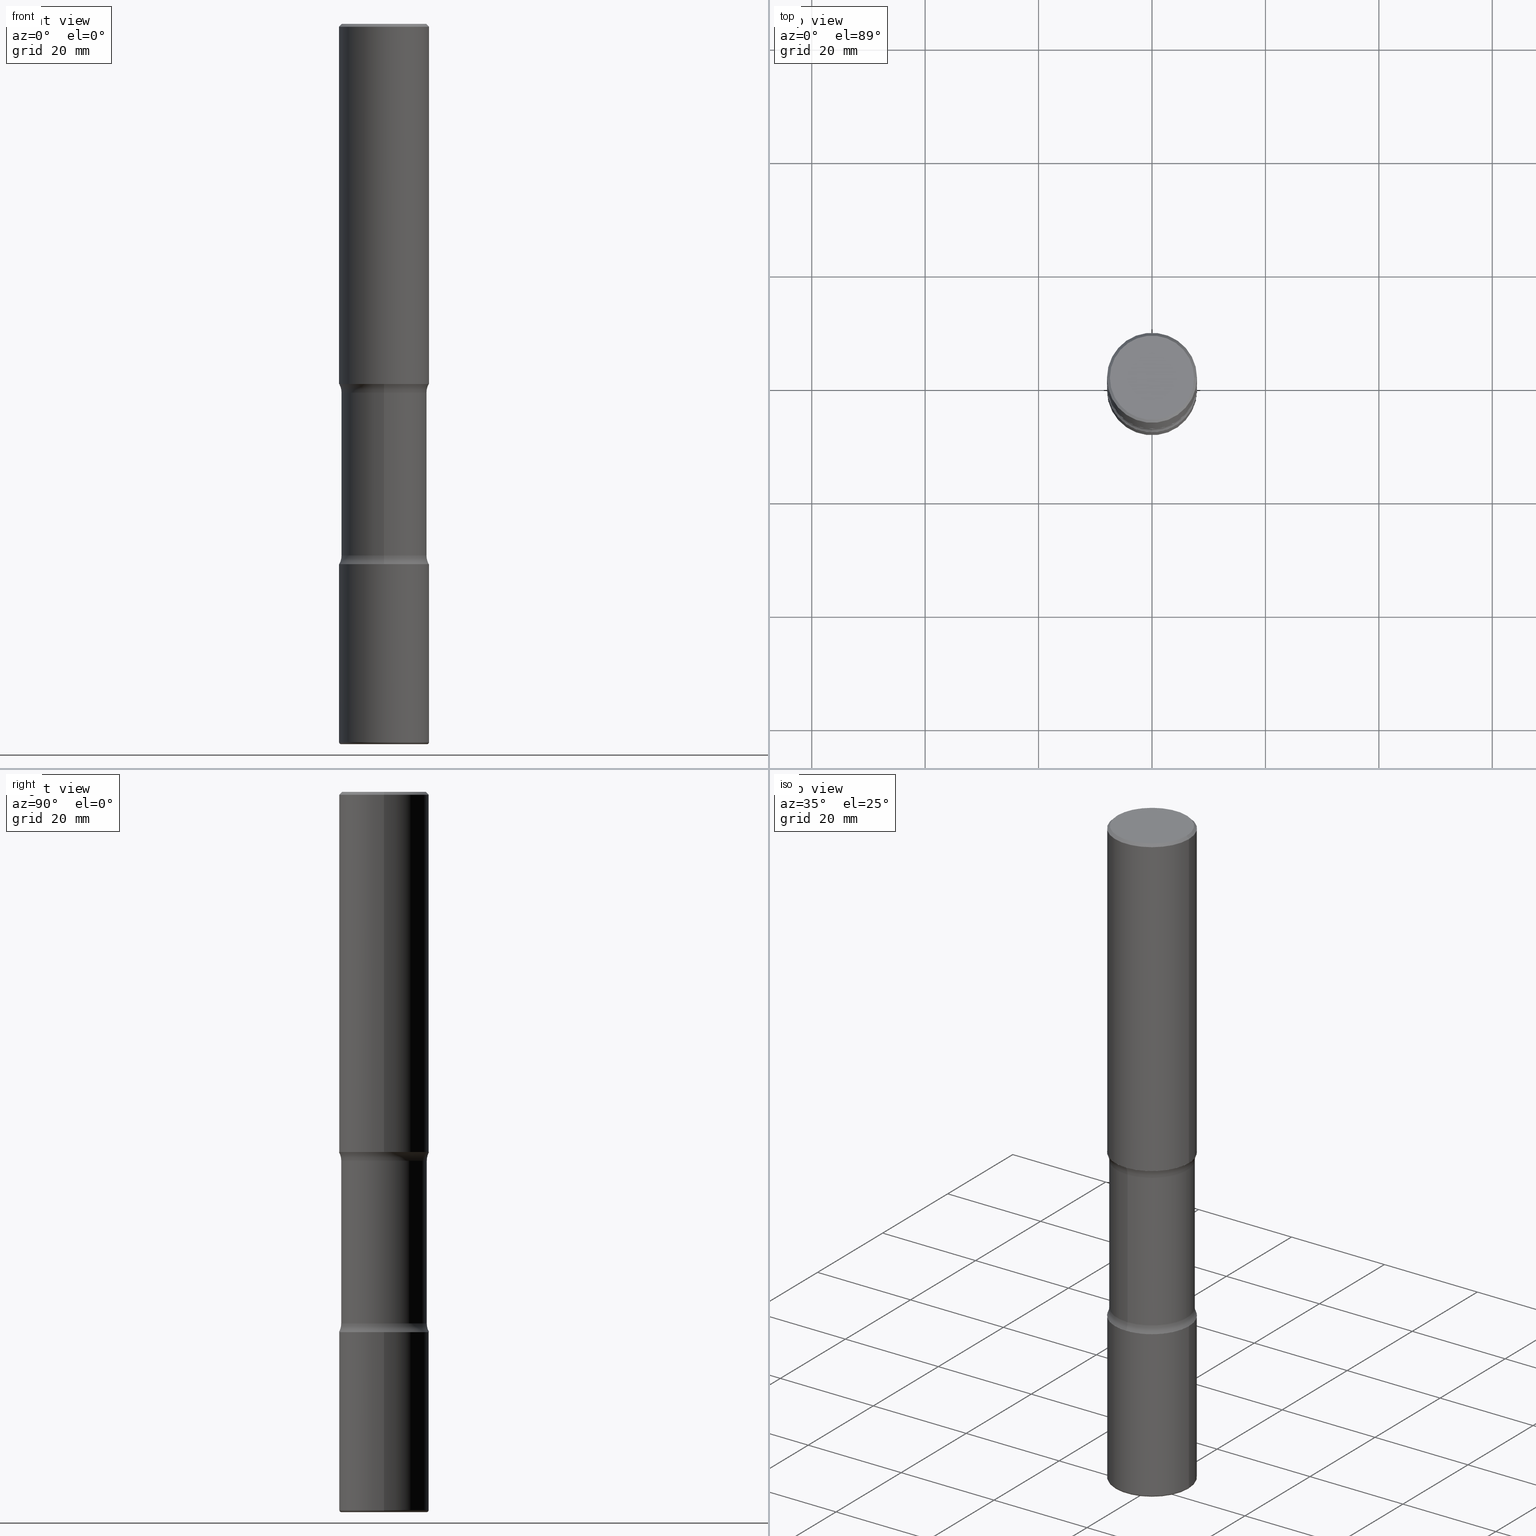
[diagram: canonical four-view strip — front | top / right | iso, engineering-drawing reading convention]
A machine part, canonical four-view strip (front | top / right | iso — engineering-drawing reading convention). The complete STEP part file that produces these views, byte-faithful:
ISO-10303-21;
HEADER;
FILE_DESCRIPTION (( 'STEP AP203' ),
    '1' );
FILE_NAME ('37900.STEP',
    '2024-03-02T01:12:08',
    ( '' ),
    ( '' ),
    'SwSTEP 2.0',
    'SolidWorks 2023',
    '' );
FILE_SCHEMA (( 'CONFIG_CONTROL_DESIGN' ));
ENDSEC;

DATA;
#1 = CARTESIAN_POINT ( 'NONE',  ( -0.3124999999999998890, 2.112346210000094260E-15, -0.02000000000000006981 ) ) ;
#2 = CC_DESIGN_PERSON_AND_ORGANIZATION_ASSIGNMENT ( #401, #183, ( #283 ) ) ;
#3 = DIRECTION ( 'NONE',  ( 2.521457479434076939E-29, -3.382661233743975076E-15, -1.000000000000000000 ) ) ;
#4 = CARTESIAN_POINT ( 'NONE',  ( 4.890937612370289799E-31, -6.982962677686315028E-17, -0.02000000000000006981 ) ) ;
#5 = CIRCLE ( 'NONE', #510, 0.3125000000000001665 ) ;
#6 = CC_DESIGN_PERSON_AND_ORGANIZATION_ASSIGNMENT ( #365, #242, ( #489 ) ) ;
#7 = TOROIDAL_SURFACE ( 'NONE', #250, 0.4218750000000001110, 0.1250000000000001388 ) ;
#8 = CIRCLE ( 'NONE', #205, 0.2968750000000000000 ) ;
#9 = DIMENSIONAL_EXPONENTS ( 1.000000000000000000, 0.000000000000000000, 0.000000000000000000, 0.000000000000000000, 0.000000000000000000, 0.000000000000000000, 0.000000000000000000 ) ;
#10 = PERSON ( 'UNSPECIFIED', 'UNSPECIFIED', 'UNSPECIFIED', ('UNSPECIFIED'), ('UNSPECIFIED'), ('UNSPECIFIED') ) ;
#11 = EDGE_CURVE ( 'NONE', #87, #347, #546, .T. ) ;
#12 = DIRECTION ( 'NONE',  ( -1.000000000000000000, 6.982962677686265922E-15, -4.876176775795935793E-29 ) ) ;
#13 = DATE_TIME_ROLE ( 'creation_date' ) ;
#14 = CARTESIAN_POINT ( 'NONE',  ( 9.170508023194261117E-29, -1.309305502066179584E-14, -3.749999999999999556 ) ) ;
#15 = DIRECTION ( 'NONE',  ( -2.445468806185136597E-29, 3.491481338843145583E-15, 1.000000000000000000 ) ) ;
#16 = AXIS2_PLACEMENT_3D ( 'NONE', #179, #46, #131 ) ;
#17 = SECURITY_CLASSIFICATION_LEVEL ( 'unclassified' ) ;
#18 = ORIENTED_EDGE ( 'NONE', *, *, #31, .T. ) ;
#19 = DIRECTION ( 'NONE',  ( 1.000000000000000000, -6.982962677686265133E-15, 0.000000000000000000 ) ) ;
#20 = CARTESIAN_POINT ( 'NONE',  ( 9.170508023194261117E-29, -1.309305502066179584E-14, -3.749999999999999556 ) ) ;
#21 = DIRECTION ( 'NONE',  ( 1.000000000000000000, -6.982962677686266711E-15, 4.876176775795935232E-29 ) ) ;
#22 = ORIENTED_EDGE ( 'NONE', *, *, #152, .T. ) ;
#23 = CC_DESIGN_PERSON_AND_ORGANIZATION_ASSIGNMENT ( #95, #495, ( #413 ) ) ;
#24 = VERTEX_POINT ( 'NONE', #456 ) ;
#25 = PLANE ( 'NONE',  #333 ) ;
#26 = VERTEX_POINT ( 'NONE', #105 ) ;
#27 = AXIS2_PLACEMENT_3D ( 'NONE', #352, #41, #399 ) ;
#28 = ORIENTED_EDGE ( 'NONE', *, *, #50, .T. ) ;
#29 = DIRECTION ( 'NONE',  ( 6.860497997771529985E-15, 1.000000000000000000, 0.000000000000000000 ) ) ;
#30 = PLANE ( 'NONE',  #376 ) ;
#31 = EDGE_CURVE ( 'NONE', #411, #347, #69, .T. ) ;
#32 = FACE_OUTER_BOUND ( 'NONE', #377, .T. ) ;
#33 = DIRECTION ( 'NONE',  ( 6.982962677686265922E-15, 1.000000000000000000, -3.382661233743975076E-15 ) ) ;
#34 = DIRECTION ( 'NONE',  ( 2.521457479434076939E-29, -3.382661233743975076E-15, -1.000000000000000000 ) ) ;
#35 = ORIENTED_EDGE ( 'NONE', *, *, #201, .F. ) ;
#36 = VECTOR ( 'NONE', #485, 39.37007874015748143 ) ;
#37 = ORIENTED_EDGE ( 'NONE', *, *, #268, .F. ) ;
#38 = DIRECTION ( 'NONE',  ( 6.982962677686266711E-15, 1.000000000000000000, -3.680805717779217644E-15 ) ) ;
#39 = DIRECTION ( 'NONE',  ( -2.445468806185136597E-29, 3.491481338843145583E-15, 1.000000000000000000 ) ) ;
#40 = CARTESIAN_POINT ( 'NONE',  ( 1.219066199883290567E-28, -1.740503447413308005E-14, -4.984999999999999432 ) ) ;
#41 = DIRECTION ( 'NONE',  ( -2.445468806185136597E-29, 3.491481338843145583E-15, 1.000000000000000000 ) ) ;
#42 = PLANE ( 'NONE',  #440 ) ;
#43 = VECTOR ( 'NONE', #225, 39.37007874015748143 ) ;
#44 = CIRCLE ( 'NONE', #85, 0.1250000000000000000 ) ;
#45 = ADVANCED_FACE ( 'NONE', ( #90 ), #241, .F. ) ;
#46 = DIRECTION ( 'NONE',  ( 0.000000000000000000, 0.000000000000000000, 1.000000000000000000 ) ) ;
#47 = AXIS2_PLACEMENT_3D ( 'NONE', #455, #371, #337 ) ;
#48 = CARTESIAN_POINT ( 'NONE',  ( -0.2924999999999998157, 2.077431396611663005E-15, 4.268512490086005323E-18 ) ) ;
#49 = APPROVAL_PERSON_ORGANIZATION ( #526, #416, #491 ) ;
#50 = EDGE_CURVE ( 'NONE', #474, #547, #187, .T. ) ;
#51 = CC_DESIGN_PERSON_AND_ORGANIZATION_ASSIGNMENT ( #186, #459, ( #413 ) ) ;
#52 = ORIENTED_EDGE ( 'NONE', *, *, #83, .F. ) ;
#53 = APPROVAL_ROLE ( '' ) ;
#54 = CARTESIAN_POINT ( 'NONE',  ( -0.3125000000000001665, -1.302859869814712249E-14, -3.749999999999999556 ) ) ;
#55 = ORIENTED_EDGE ( 'NONE', *, *, #520, .T. ) ;
#56 = DATE_AND_TIME ( #274, #378 ) ;
#57 = FACE_OUTER_BOUND ( 'NONE', #380, .T. ) ;
#58 = APPROVAL_PERSON_ORGANIZATION ( #133, #490, #408 ) ;
#59 = VERTEX_POINT ( 'NONE', #276 ) ;
#60 = DIRECTION ( 'NONE',  ( -1.000000000000000000, 7.105427357601066545E-15, 0.000000000000000000 ) ) ;
#61 = CARTESIAN_POINT ( 'NONE',  ( 0.3125000000000001665, -2.182175836776959530E-15, 1.523805242436230636E-29 ) ) ;
#62 = ORIENTED_EDGE ( 'NONE', *, *, #306, .F. ) ;
#63 = ORIENTED_EDGE ( 'NONE', *, *, #178, .F. ) ;
#64 = DIRECTION ( 'NONE',  ( 2.521457479434076939E-29, -3.382661233743975076E-15, -1.000000000000000000 ) ) ;
#65 = ORIENTED_EDGE ( 'NONE', *, *, #445, .F. ) ;
#66 = ORIENTED_EDGE ( 'NONE', *, *, #176, .F. ) ;
#67 = CARTESIAN_POINT ( 'NONE',  ( -2.894272592809775342E-15, -0.4218750000000130451, -3.689484635215506625 ) ) ;
#68 = CARTESIAN_POINT ( 'NONE',  ( 6.171273093058203090E-29, -9.069431456984199816E-15, -2.560515364784490711 ) ) ;
#69 = CIRCLE ( 'NONE', #217, 0.3125000000000001665 ) ;
#70 = AXIS2_PLACEMENT_3D ( 'NONE', #486, #385, #552 ) ;
#71 = EDGE_LOOP ( 'NONE', ( #428, #132 ) ) ;
#72 = ADVANCED_FACE ( 'NONE', ( #57 ), #137, .T. ) ;
#73 = ADVANCED_FACE ( 'NONE', ( #452 ), #402, .F. ) ;
#74 = CARTESIAN_POINT ( 'NONE',  ( 1.222734403092568523E-28, -1.745740669421572989E-14, -5.000000000000000000 ) ) ;
#75 = DIRECTION ( 'NONE',  ( 1.000000000000000000, -6.982962677686266711E-15, 4.876176775795936353E-29 ) ) ;
#76 = ORIENTED_EDGE ( 'NONE', *, *, #152, .F. ) ;
#77 = CARTESIAN_POINT ( 'NONE',  ( 4.890937612370289799E-31, -6.982962677686315028E-17, -0.02000000000000006981 ) ) ;
#78 = ORIENTED_EDGE ( 'NONE', *, *, #409, .F. ) ;
#79 = DIRECTION ( 'NONE',  ( 6.982962677686265133E-15, 1.000000000000000000, -3.496765431890254947E-15 ) ) ;
#80 = VECTOR ( 'NONE', #154, 39.37007874015748143 ) ;
#81 = CC_DESIGN_APPROVAL ( #416, ( #106 ) ) ;
#82 = CARTESIAN_POINT ( 'NONE',  ( 0.2924999999999998157, -2.110215457714318748E-15, 4.268512490114932791E-18 ) ) ;
#83 = EDGE_CURVE ( 'NONE', #547, #220, #305, .T. ) ;
#84 = AXIS2_PLACEMENT_3D ( 'NONE', #14, #98, #19 ) ;
#85 = AXIS2_PLACEMENT_3D ( 'NONE', #397, #215, #389 ) ;
#86 = EDGE_CURVE ( 'NONE', #509, #26, #354, .T. ) ;
#87 = VERTEX_POINT ( 'NONE', #513 ) ;
#88 = CIRCLE ( 'NONE', #84, 0.3125000000000001665 ) ;
#89 = CC_DESIGN_APPROVAL ( #97, ( #413 ) ) ;
#90 = FACE_OUTER_BOUND ( 'NONE', #368, .T. ) ;
#91 = DATE_AND_TIME ( #324, #356 ) ;
#92 = APPLICATION_CONTEXT ( 'configuration controlled 3d designs of mechanical parts and assemblies' ) ;
#93 = DIRECTION ( 'NONE',  ( -2.445468806185136597E-29, 3.491481338843145583E-15, 1.000000000000000000 ) ) ;
#94 = DIRECTION ( 'NONE',  ( 1.000000000000000000, -6.982962677686265133E-15, 0.000000000000000000 ) ) ;
#95 = PERSON_AND_ORGANIZATION ( #10, #308 ) ;
#96 = EDGE_LOOP ( 'NONE', ( #194, #421 ) ) ;
#97 = APPROVAL ( #328, 'UNSPECIFIED' ) ;
#98 = DIRECTION ( 'NONE',  ( -2.445468806185136597E-29, 3.491481338843145583E-15, 1.000000000000000000 ) ) ;
#100 = DIRECTION ( 'NONE',  ( 2.521457479434076939E-29, -3.382661233743975076E-15, -1.000000000000000000 ) ) ;
#99 = AXIS2_PLACEMENT_3D ( 'NONE', #387, #349, #553 ) ;
#101 = AXIS2_PLACEMENT_3D ( 'NONE', #262, #444, #112 ) ;
#102 = DIRECTION ( 'NONE',  ( 2.521457479434076939E-29, -3.382661233743975076E-15, -1.000000000000000000 ) ) ;
#103 = ORIENTED_EDGE ( 'NONE', *, *, #466, .T. ) ;
#104 = DIRECTION ( 'NONE',  ( 2.438088387897960049E-29, -3.491481338843145188E-15, -1.000000000000000000 ) ) ;
#105 = CARTESIAN_POINT ( 'NONE',  ( -2.090307983695922804E-15, -0.2968750000000128786, -3.689484635215507069 ) ) ;
#106 = PRODUCT_DEFINITION ( 'UNKNOWN', '', #413, #266 ) ;
#107 = DIRECTION ( 'NONE',  ( 1.000000000000000000, -6.982962677686264344E-15, 0.000000000000000000 ) ) ;
#108 = DIRECTION ( 'NONE',  ( -1.000000000000000000, 6.982962677686266711E-15, 0.000000000000000000 ) ) ;
#109 = AXIS2_PLACEMENT_3D ( 'NONE', #20, #233, #12 ) ;
#110 = AXIS2_PLACEMENT_3D ( 'NONE', #418, #147, #21 ) ;
#111 = VERTEX_POINT ( 'NONE', #208 ) ;
#112 = DIRECTION ( 'NONE',  ( 1.000000000000000000, -6.982962677686266711E-15, 4.876176775795936353E-29 ) ) ;
#113 = DIRECTION ( 'NONE',  ( -1.000000000000000000, 6.982962677686265922E-15, -4.883557194083112340E-29 ) ) ;
#114 = EDGE_LOOP ( 'NONE', ( #503, #430, #463, #52 ) ) ;
#115 = ADVANCED_FACE ( 'NONE', ( #304 ), #476, .T. ) ;
#116 = CARTESIAN_POINT ( 'NONE',  ( 0.2975000000000001532, -1.948246587074474660E-14, -4.984999999999999432 ) ) ;
#117 = CARTESIAN_POINT ( 'NONE',  ( 6.171273093058203090E-29, -9.069431456984199816E-15, -2.560515364784490711 ) ) ;
#118 = DIRECTION ( 'NONE',  ( 2.445468806185136597E-29, -3.491481338843145583E-15, -1.000000000000000000 ) ) ;
#119 = EDGE_LOOP ( 'NONE', ( #467, #253, #436, #469 ) ) ;
#120 = CARTESIAN_POINT ( 'NONE',  ( 9.170508023194261117E-29, -1.309305502066179584E-14, -3.749999999999999556 ) ) ;
#121 = AXIS2_PLACEMENT_3D ( 'NONE', #117, #177, #38 ) ;
#122 = FACE_OUTER_BOUND ( 'NONE', #465, .T. ) ;
#123 = DATE_AND_TIME ( #162, #130 ) ;
#124 = DIRECTION ( 'NONE',  ( 6.982962677686265922E-15, 1.000000000000000000, -3.382661233743975076E-15 ) ) ;
#125 = DIRECTION ( 'NONE',  ( 1.000000000000000000, -6.982962677686266711E-15, 0.000000000000000000 ) ) ;
#126 = MECHANICAL_CONTEXT ( 'NONE', #92, 'mechanical' ) ;
#127 = DIRECTION ( 'NONE',  ( 1.000000000000000000, -6.982962677686264344E-15, 0.000000000000000000 ) ) ;
#128 = ADVANCED_FACE ( 'NONE', ( #522 ), #203, .T. ) ;
#129 = VECTOR ( 'NONE', #312, 39.37007874015748143 ) ;
#130 = LOCAL_TIME ( 20, 12, 8.000000000000000000, #479 ) ;
#131 = DIRECTION ( 'NONE',  ( 1.000000000000000000, 0.000000000000000000, 0.000000000000000000 ) ) ;
#132 = ORIENTED_EDGE ( 'NONE', *, *, #229, .F. ) ;
#133 = PERSON_AND_ORGANIZATION ( #10, #308 ) ;
#134 = AXIS2_PLACEMENT_3D ( 'NONE', #120, #392, #556 ) ;
#135 = CIRCLE ( 'NONE', #315, 0.1250000000000000000 ) ;
#136 = APPLICATION_CONTEXT ( 'configuration controlled 3d designs of mechanical parts and assemblies' ) ;
#137 = CYLINDRICAL_SURFACE ( 'NONE', #542, 0.3125000000000001665 ) ;
#138 = PERSON_AND_ORGANIZATION ( #10, #308 ) ;
#139 = MANIFOLD_SOLID_BREP ( 'Body-Move/Copy2[4]', #149 ) ;
#140 = MANIFOLD_SOLID_BREP ( 'Body-Move/Copy2[2]', #174 ) ;
#141 = DIRECTION ( 'NONE',  ( 2.521457479434076939E-29, -3.382661233743975076E-15, -1.000000000000000000 ) ) ;
#142 = ORIENTED_EDGE ( 'NONE', *, *, #296, .F. ) ;
#143 = DATE_AND_TIME ( #417, #261 ) ;
#144 = EDGE_LOOP ( 'NONE', ( #78, #66, #55, #557 ) ) ;
#145 = CYLINDRICAL_SURFACE ( 'NONE', #343, 0.2968750000000000000 ) ;
#146 = EDGE_LOOP ( 'NONE', ( #35, #323, #180, #76 ) ) ;
#147 = DIRECTION ( 'NONE',  ( -2.445468806185136597E-29, 3.491481338843145583E-15, 1.000000000000000000 ) ) ;
#149 = CLOSED_SHELL ( 'NONE', ( #524, #73, #454, #487, #442, #302, #316, #332 ) ) ;
#148 = ORIENTED_EDGE ( 'NONE', *, *, #212, .F. ) ;
#150 = CC_DESIGN_SECURITY_CLASSIFICATION ( #489, ( #413 ) ) ;
#151 = ORIENTED_EDGE ( 'NONE', *, *, #202, .F. ) ;
#152 = EDGE_CURVE ( 'NONE', #111, #301, #492, .T. ) ;
#153 = CARTESIAN_POINT ( 'NONE',  ( 2.042516583223231356E-15, 0.2924999999999998157, -1.019124035366569212E-15 ) ) ;
#154 = DIRECTION ( 'NONE',  ( -2.445468806185136877E-29, 3.491481338843145188E-15, 1.000000000000000000 ) ) ;
#155 = ORIENTED_EDGE ( 'NONE', *, *, #350, .F. ) ;
#156 = CARTESIAN_POINT ( 'NONE',  ( 1.222734403092568523E-28, -1.745740669421572989E-14, -5.000000000000000000 ) ) ;
#157 = DIRECTION ( 'NONE',  ( -2.521457479434076939E-29, 3.382661233743974681E-15, 1.000000000000000000 ) ) ;
#158 = CARTESIAN_POINT ( 'NONE',  ( -0.3125000000000001665, 2.220446049250314264E-15, -1.537167215704658792E-29 ) ) ;
#159 = VERTEX_POINT ( 'NONE', #223 ) ;
#160 = VERTEX_POINT ( 'NONE', #384 ) ;
#161 = DIRECTION ( 'NONE',  ( -2.445468806185136597E-29, 3.491481338843145583E-15, 1.000000000000000000 ) ) ;
#162 = CALENDAR_DATE ( 2024, 1, 3 ) ;
#163 = CARTESIAN_POINT ( 'NONE',  ( 4.890937612370289799E-31, -6.982962677686315028E-17, -0.02000000000000006981 ) ) ;
#164 = AXIS2_PLACEMENT_3D ( 'NONE', #334, #535, #107 ) ;
#165 = APPROVAL_PERSON_ORGANIZATION ( #138, #97, #53 ) ;
#166 = CYLINDRICAL_SURFACE ( 'NONE', #70, 0.2968750000000000000 ) ;
#167 = FACE_OUTER_BOUND ( 'NONE', #71, .T. ) ;
#168 = CARTESIAN_POINT ( 'NONE',  ( 0.3124999999999998890, -2.213735251080466123E-15, -0.02000000000000006981 ) ) ;
#169 = EDGE_LOOP ( 'NONE', ( #451, #189, #551, #541 ) ) ;
#170 = DIRECTION ( 'NONE',  ( 2.521457479434076939E-29, -3.382661233743974681E-15, -1.000000000000000000 ) ) ;
#171 = DIRECTION ( 'NONE',  ( -2.445468806185136877E-29, 3.491481338843145188E-15, 1.000000000000000000 ) ) ;
#172 =( NAMED_UNIT ( * ) SI_UNIT ( $, .STERADIAN. ) SOLID_ANGLE_UNIT ( ) );
#173 = DIRECTION ( 'NONE',  ( -6.982962677686266711E-15, -1.000000000000000000, 0.000000000000000000 ) ) ;
#174 = CLOSED_SHELL ( 'NONE', ( #502, #218, #128, #396, #181, #115 ) ) ;
#175 = AXIS2_PLACEMENT_3D ( 'NONE', #156, #211, #548 ) ;
#176 = EDGE_CURVE ( 'NONE', #539, #509, #190, .T. ) ;
#177 = DIRECTION ( 'NONE',  ( 2.521457479434076939E-29, -3.382661233743975076E-15, -1.000000000000000000 ) ) ;
#178 = EDGE_CURVE ( 'NONE', #291, #411, #300, .T. ) ;
#179 = CARTESIAN_POINT ( 'NONE',  ( 0.000000000000000000, 0.000000000000000000, 0.000000000000000000 ) ) ;
#180 = ORIENTED_EDGE ( 'NONE', *, *, #350, .T. ) ;
#181 = ADVANCED_FACE ( 'NONE', ( #32 ), #30, .F. ) ;
#182 = CIRCLE ( 'NONE', #27, 0.3125000000000002220 ) ;
#183 = PERSON_AND_ORGANIZATION_ROLE ( 'design_owner' ) ;
#184 = CIRCLE ( 'NONE', #121, 0.2968750000000000000 ) ;
#185 = EDGE_CURVE ( 'NONE', #160, #59, #360, .T. ) ;
#186 = PERSON_AND_ORGANIZATION ( #10, #308 ) ;
#187 = LINE ( 'NONE', #366, #457 ) ;
#188 = APPROVAL_DATE_TIME ( #232, #97 ) ;
#189 = ORIENTED_EDGE ( 'NONE', *, *, #409, .T. ) ;
#190 = CIRCLE ( 'NONE', #265, 0.2968750000000000000 ) ;
#191 = CARTESIAN_POINT ( 'NONE',  ( -1.043851414335219820E-46, 1.490343170380447200E-32, 4.268512490100411279E-18 ) ) ;
#192 = TOROIDAL_SURFACE ( 'NONE', #267, 0.4218750000000000555, 0.1250000000000000000 ) ;
#193 = CARTESIAN_POINT ( 'NONE',  ( 9.170508023194261117E-29, -1.309305502066179584E-14, -3.749999999999999556 ) ) ;
#194 = ORIENTED_EDGE ( 'NONE', *, *, #202, .T. ) ;
#195 = PRODUCT_RELATED_PRODUCT_CATEGORY ( 'detail', '', ( #283 ) ) ;
#196 = COORDINATED_UNIVERSAL_TIME_OFFSET ( 5, 0, .BEHIND. ) ;
#197 = DIRECTION ( 'NONE',  ( 1.000000000000000000, -6.982962677686266711E-15, 4.876067333457692840E-29 ) ) ;
#198 = EDGE_LOOP ( 'NONE', ( #482, #372, #237, #338 ) ) ;
#199 = DIRECTION ( 'NONE',  ( -6.982962677686265922E-15, -1.000000000000000000, 3.382661233743974681E-15 ) ) ;
#200 = ORIENTED_EDGE ( 'NONE', *, *, #272, .F. ) ;
#201 = EDGE_CURVE ( 'NONE', #415, #111, #5, .T. ) ;
#202 = EDGE_CURVE ( 'NONE', #111, #415, #390, .T. ) ;
#203 = CONICAL_SURFACE ( 'NONE', #525, 0.3124999999999998890, 0.7853981633974479459 ) ;
#204 = CARTESIAN_POINT ( 'NONE',  ( -0.3125000000000004441, -1.518458842488276381E-14, -4.984999999999999432 ) ) ;
#206 = ORIENTED_EDGE ( 'NONE', *, *, #50, .F. ) ;
#205 = AXIS2_PLACEMENT_3D ( 'NONE', #464, #64, #496 ) ;
#207 = FACE_OUTER_BOUND ( 'NONE', #198, .T. ) ;
#208 = CARTESIAN_POINT ( 'NONE',  ( 2.182175836777050644E-15, 0.3124999999999870104, -3.750000000000000888 ) ) ;
#209 = PRODUCT_DEFINITION_SHAPE ( 'NONE', 'NONE',  #106 ) ;
#210 = EDGE_LOOP ( 'NONE', ( #148, #200, #28, #460 ) ) ;
#211 = DIRECTION ( 'NONE',  ( -2.445468806185136597E-29, 3.491481338843145583E-15, 1.000000000000000000 ) ) ;
#212 = EDGE_CURVE ( 'NONE', #214, #220, #259, .T. ) ;
#213 = DIRECTION ( 'NONE',  ( -2.438088387897960049E-29, 3.491481338843145188E-15, 1.000000000000000000 ) ) ;
#214 = VERTEX_POINT ( 'NONE', #82 ) ;
#215 = DIRECTION ( 'NONE',  ( -1.000000000000000000, 6.982962677686265922E-15, -4.883557194083112340E-29 ) ) ;
#216 = CARTESIAN_POINT ( 'NONE',  ( 0.000000000000000000, 0.000000000000000000, 0.000000000000000000 ) ) ;
#217 = AXIS2_PLACEMENT_3D ( 'NONE', #290, #15, #94 ) ;
#218 = ADVANCED_FACE ( 'NONE', ( #516 ), #554, .T. ) ;
#219 = CIRCLE ( 'NONE', #175, 0.2975000000000001532 ) ;
#220 = VERTEX_POINT ( 'NONE', #441 ) ;
#221 = DIRECTION ( 'NONE',  ( 1.000000000000000000, -6.982962677686217012E-15, 0.000000000000000000 ) ) ;
#222 = CARTESIAN_POINT ( 'NONE',  ( 2.073067044938233492E-15, 0.2968749999999827360, -5.000000000000000888 ) ) ;
#223 = CARTESIAN_POINT ( 'NONE',  ( -0.2975000000000001532, -1.526406524010609511E-14, -5.000000000000000000 ) ) ;
#224 = DIRECTION ( 'NONE',  ( 2.521457479434076939E-29, -3.382661233743975076E-15, -1.000000000000000000 ) ) ;
#225 = DIRECTION ( 'NONE',  ( 2.521457479434076939E-29, -3.382661233743974681E-15, -1.000000000000000000 ) ) ;
#226 = EDGE_CURVE ( 'NONE', #24, #547, #395, .T. ) ;
#227 = AXIS2_PLACEMENT_3D ( 'NONE', #540, #102, #236 ) ;
#228 = AXIS2_PLACEMENT_3D ( 'NONE', #116, #483, #221 ) ;
#229 = EDGE_CURVE ( 'NONE', #59, #160, #519, .T. ) ;
#230 = AXIS2_PLACEMENT_3D ( 'NONE', #4, #362, #282 ) ;
#231 = CIRCLE ( 'NONE', #228, 0.01500000000000038629 ) ;
#232 = DATE_AND_TIME ( #498, #320 ) ;
#233 = DIRECTION ( 'NONE',  ( 2.438088387897960049E-29, -3.491481338843145188E-15, -1.000000000000000000 ) ) ;
#234 = COORDINATED_UNIVERSAL_TIME_OFFSET ( 5, 0, .BEHIND. ) ;
#235 = ADVANCED_FACE ( 'NONE', ( #254 ), #471, .T. ) ;
#236 = DIRECTION ( 'NONE',  ( 6.982962677686265133E-15, 1.000000000000000000, -3.680805717779217644E-15 ) ) ;
#237 = ORIENTED_EDGE ( 'NONE', *, *, #286, .F. ) ;
#238 = PERSON_AND_ORGANIZATION ( #10, #308 ) ;
#239 = CIRCLE ( 'NONE', #404, 0.2975000000000001532 ) ;
#240 = CARTESIAN_POINT ( 'NONE',  ( 0.2975000000000001532, -1.953483809082739644E-14, -5.000000000000000000 ) ) ;
#241 = PLANE ( 'NONE',  #109 ) ;
#242 = PERSON_AND_ORGANIZATION_ROLE ( 'classification_officer' ) ;
#243 = CYLINDRICAL_SURFACE ( 'NONE', #110, 0.3125000000000001665 ) ;
#244 = DIRECTION ( 'NONE',  ( -2.445468806185136597E-29, 3.491481338843145583E-15, 1.000000000000000000 ) ) ;
#245 = ORIENTED_EDGE ( 'NONE', *, *, #268, .T. ) ;
#246 = FACE_OUTER_BOUND ( 'NONE', #534, .T. ) ;
#247 = EDGE_LOOP ( 'NONE', ( #65, #511 ) ) ;
#248 = ORIENTED_EDGE ( 'NONE', *, *, #363, .T. ) ;
#249 = EDGE_CURVE ( 'NONE', #335, #24, #182, .T. ) ;
#250 = AXIS2_PLACEMENT_3D ( 'NONE', #414, #141, #537 ) ;
#251 = CARTESIAN_POINT ( 'NONE',  ( 0.3125000000000002220, -1.091087918388482329E-14, -2.499999999999999556 ) ) ;
#252 = DIRECTION ( 'NONE',  ( -1.000000000000000000, 6.982962677686266711E-15, 0.000000000000000000 ) ) ;
#253 = ORIENTED_EDGE ( 'NONE', *, *, #86, .T. ) ;
#254 = FACE_OUTER_BOUND ( 'NONE', #514, .T. ) ;
#255 = ORIENTED_EDGE ( 'NONE', *, *, #403, .F. ) ;
#256 = EDGE_LOOP ( 'NONE', ( #375, #422, #499, #470 ) ) ;
#257 = SHAPE_DEFINITION_REPRESENTATION ( #209, #438 ) ;
#258 = DIRECTION ( 'NONE',  ( 6.982962677686266711E-15, 1.000000000000000000, -3.680805717779217644E-15 ) ) ;
#259 = LINE ( 'NONE', #168, #129 ) ;
#260 = AXIS2_PLACEMENT_3D ( 'NONE', #294, #427, #473 ) ;
#261 = LOCAL_TIME ( 20, 12, 8.000000000000000000, #313 ) ;
#262 = CARTESIAN_POINT ( 'NONE',  ( 0.000000000000000000, 0.000000000000000000, 0.000000000000000000 ) ) ;
#263 = DIRECTION ( 'NONE',  ( -2.445468806185136877E-29, 3.491481338843145188E-15, 1.000000000000000000 ) ) ;
#264 = CARTESIAN_POINT ( 'NONE',  ( 1.219066199883290567E-28, -1.740503447413308005E-14, -4.984999999999999432 ) ) ;
#265 = AXIS2_PLACEMENT_3D ( 'NONE', #68, #550, #258 ) ;
#266 = DESIGN_CONTEXT ( 'detailed design', #136, 'design' ) ;
#267 = AXIS2_PLACEMENT_3D ( 'NONE', #432, #224, #33 ) ;
#268 = EDGE_CURVE ( 'NONE', #220, #547, #355, .T. ) ;
#269 = CC_DESIGN_DATE_AND_TIME_ASSIGNMENT ( #56, #529, ( #489 ) ) ;
#270 = AXIS2_PLACEMENT_3D ( 'NONE', #500, #100, #281 ) ;
#271 = AXIS2_PLACEMENT_3D ( 'NONE', #40, #311, #127 ) ;
#272 = EDGE_CURVE ( 'NONE', #474, #214, #319, .T. ) ;
#273 = DIRECTION ( 'NONE',  ( 1.000000000000000000, -6.982962677686266711E-15, 4.876176775795935232E-29 ) ) ;
#274 = CALENDAR_DATE ( 2024, 1, 3 ) ;
#275 = CARTESIAN_POINT ( 'NONE',  ( 2.073067044938200360E-15, 0.2968749999999871214, -3.689484635215509289 ) ) ;
#276 = CARTESIAN_POINT ( 'NONE',  ( -2.143905624303545238E-15, -0.3125000000000091593, -2.499999999999998668 ) ) ;
#277 = APPROVAL_DATE_TIME ( #143, #416 ) ;
#278 = VECTOR ( 'NONE', #171, 39.37007874015748143 ) ;
#279 = CIRCLE ( 'NONE', #271, 0.3125000000000002220 ) ;
#280 = DIRECTION ( 'NONE',  ( 6.982962677686266711E-15, 1.000000000000000000, -3.680805717779217644E-15 ) ) ;
#281 = DIRECTION ( 'NONE',  ( 6.982962677686265922E-15, 1.000000000000000000, -3.382661233743975076E-15 ) ) ;
#282 = DIRECTION ( 'NONE',  ( 1.000000000000000000, -6.982962677686266711E-15, 0.000000000000000000 ) ) ;
#283 = PRODUCT ( '37900', '37900', '', ( #126 ) ) ;
#284 = FACE_OUTER_BOUND ( 'NONE', #256, .T. ) ;
#285 = ORIENTED_EDGE ( 'NONE', *, *, #249, .T. ) ;
#286 = EDGE_CURVE ( 'NONE', #347, #411, #88, .T. ) ;
#287 = ORIENTED_EDGE ( 'NONE', *, *, #31, .F. ) ;
#288 = VERTEX_POINT ( 'NONE', #240 ) ;
#289 = DIRECTION ( 'NONE',  ( -1.000000000000000000, 6.982962677686265922E-15, -4.876176775795935793E-29 ) ) ;
#290 = CARTESIAN_POINT ( 'NONE',  ( 9.170508023194261117E-29, -1.309305502066179584E-14, -3.749999999999999556 ) ) ;
#291 = VERTEX_POINT ( 'NONE', #204 ) ;
#292 = FACE_OUTER_BOUND ( 'NONE', #406, .T. ) ;
#294 = CARTESIAN_POINT ( 'NONE',  ( 6.018686173901665994E-29, -8.864728478481826400E-15, -2.499999999999999556 ) ) ;
#293 = CIRCLE ( 'NONE', #345, 0.1250000000000001388 ) ;
#295 = ORIENTED_EDGE ( 'NONE', *, *, #86, .F. ) ;
#296 = EDGE_CURVE ( 'NONE', #214, #474, #307, .T. ) ;
#297 = CARTESIAN_POINT ( 'NONE',  ( -2.036710343088299976E-15, -0.2968750000000173195, -4.999999999999999112 ) ) ;
#298 = ORIENTED_EDGE ( 'NONE', *, *, #226, .T. ) ;
#299 = DIRECTION ( 'NONE',  ( -1.000000000000000000, 6.982962677686265922E-15, -4.876176775795935793E-29 ) ) ;
#300 = LINE ( 'NONE', #158, #36 ) ;
#301 = VERTEX_POINT ( 'NONE', #275 ) ;
#302 = ADVANCED_FACE ( 'NONE', ( #369 ), #379, .F. ) ;
#303 = CARTESIAN_POINT ( 'NONE',  ( 0.3125000000000000000, -2.182175836776958347E-15, 1.523805242436230075E-29 ) ) ;
#304 = FACE_OUTER_BOUND ( 'NONE', #114, .T. ) ;
#305 = CIRCLE ( 'NONE', #530, 0.3124999999999998890 ) ;
#306 = EDGE_CURVE ( 'NONE', #24, #335, #501, .T. ) ;
#307 = CIRCLE ( 'NONE', #314, 0.2924999999999998157 ) ;
#308 = ORGANIZATION ( 'UNSPECIFIED', 'UNSPECIFIED', '' ) ;
#309 = DIRECTION ( 'NONE',  ( 2.438088387897960049E-29, -3.491481338843145188E-15, -1.000000000000000000 ) ) ;
#310 = APPROVAL_DATE_TIME ( #123, #490 ) ;
#311 = DIRECTION ( 'NONE',  ( -2.445468806185136597E-29, 3.491481338843145583E-15, 1.000000000000000000 ) ) ;
#312 = DIRECTION ( 'NONE',  ( 0.7071067811865472397, -7.319954787623254468E-15, -0.7071067811865477948 ) ) ;
#313 = COORDINATED_UNIVERSAL_TIME_OFFSET ( 5, 0, .BEHIND. ) ;
#314 = AXIS2_PLACEMENT_3D ( 'NONE', #420, #545, #197 ) ;
#315 = AXIS2_PLACEMENT_3D ( 'NONE', #383, #549, #507 ) ;
#316 = ADVANCED_FACE ( 'NONE', ( #292 ), #7, .F. ) ;
#317 = ORIENTED_EDGE ( 'NONE', *, *, #249, .F. ) ;
#318 = APPLICATION_PROTOCOL_DEFINITION ( 'international standard', 'config_control_design', 1994, #136 ) ;
#319 = CIRCLE ( 'NONE', #543, 0.2924999999999998157 ) ;
#320 = LOCAL_TIME ( 20, 12, 8.000000000000000000, #234 ) ;
#321 = APPROVAL_STATUS ( 'not_yet_approved' ) ;
#322 = ORIENTED_EDGE ( 'NONE', *, *, #353, .F. ) ;
#323 = ORIENTED_EDGE ( 'NONE', *, *, #403, .T. ) ;
#324 = CALENDAR_DATE ( 2024, 1, 3 ) ;
#325 = CARTESIAN_POINT ( 'NONE',  ( 1.219066199883290567E-28, -1.740503447413308005E-14, -4.984999999999999432 ) ) ;
#326 = DIRECTION ( 'NONE',  ( -0.7071067811865472397, 2.468850131082253905E-15, -0.7071067811865477948 ) ) ;
#327 = MANIFOLD_SOLID_BREP ( 'Body-Move/Copy2[1]', #331 ) ;
#328 = APPROVAL_STATUS ( 'not_yet_approved' ) ;
#329 = DIRECTION ( 'NONE',  ( 2.521457479434076939E-29, -3.382661233743975076E-15, -1.000000000000000000 ) ) ;
#330 = DIRECTION ( 'NONE',  ( -2.445468806185136597E-29, 3.491481338843145583E-15, 1.000000000000000000 ) ) ;
#331 = CLOSED_SHELL ( 'NONE', ( #373, #235, #538, #359, #72, #45 ) ) ;
#332 = ADVANCED_FACE ( 'NONE', ( #374 ), #145, .T. ) ;
#333 = AXIS2_PLACEMENT_3D ( 'NONE', #153, #104, #289 ) ;
#334 = CARTESIAN_POINT ( 'NONE',  ( 1.219066199883290567E-28, -1.740503447413308005E-14, -4.984999999999999432 ) ) ;
#335 = VERTEX_POINT ( 'NONE', #251 ) ;
#336 = ORIENTED_EDGE ( 'NONE', *, *, #382, .T. ) ;
#337 = DIRECTION ( 'NONE',  ( 1.000000000000000000, -6.982962677686266711E-15, 0.000000000000000000 ) ) ;
#338 = ORIENTED_EDGE ( 'NONE', *, *, #11, .F. ) ;
#339 = CYLINDRICAL_SURFACE ( 'NONE', #101, 0.3125000000000000000 ) ;
#340 = CARTESIAN_POINT ( 'NONE',  ( 0.3125000000000001665, -1.527523085743875418E-14, -3.749999999999999556 ) ) ;
#341 = DIRECTION ( 'NONE',  ( 1.000000000000000000, -6.982962677686265922E-15, 4.876176775795935793E-29 ) ) ;
#342 = DIRECTION ( 'NONE',  ( 1.000000000000000000, -6.982962677686266711E-15, 4.876067333457692840E-29 ) ) ;
#343 = AXIS2_PLACEMENT_3D ( 'NONE', #468, #329, #280 ) ;
#344 = CARTESIAN_POINT ( 'NONE',  ( -2.143905624303512894E-15, -0.3125000000000132672, -3.749999999999998668 ) ) ;
#346 = CARTESIAN_POINT ( 'NONE',  ( 2.945937379648984488E-15, 0.4218749999999872324, -3.689484635215510178 ) ) ;
#345 = AXIS2_PLACEMENT_3D ( 'NONE', #67, #426, #29 ) ;
#347 = VERTEX_POINT ( 'NONE', #340 ) ;
#348 = FACE_OUTER_BOUND ( 'NONE', #247, .T. ) ;
#349 = DIRECTION ( 'NONE',  ( 2.521457479434076939E-29, -3.382661233743975076E-15, -1.000000000000000000 ) ) ;
#350 = EDGE_CURVE ( 'NONE', #26, #301, #400, .T. ) ;
#351 = DIRECTION ( 'NONE',  ( 1.000000000000000000, -6.982962677686272233E-15, 0.000000000000000000 ) ) ;
#352 = CARTESIAN_POINT ( 'NONE',  ( 6.113672015462840371E-29, -8.728703347107863365E-15, -2.499999999999999556 ) ) ;
#353 = EDGE_CURVE ( 'NONE', #87, #291, #412, .T. ) ;
#354 = LINE ( 'NONE', #297, #43 ) ;
#355 = CIRCLE ( 'NONE', #230, 0.3124999999999998890 ) ;
#356 = LOCAL_TIME ( 20, 12, 8.000000000000000000, #405 ) ;
#357 = DIRECTION ( 'NONE',  ( 6.982962677686265922E-15, 1.000000000000000000, -3.382661233743974681E-15 ) ) ;
#358 = APPROVAL_STATUS ( 'not_yet_approved' ) ;
#359 = ADVANCED_FACE ( 'NONE', ( #284 ), #488, .T. ) ;
#360 = CIRCLE ( 'NONE', #99, 0.3125000000000002776 ) ;
#361 = TOROIDAL_SURFACE ( 'NONE', #447, 0.4218750000000000555, 0.1250000000000000000 ) ;
#362 = DIRECTION ( 'NONE',  ( -2.445468806185136597E-29, 3.491481338843145583E-15, 1.000000000000000000 ) ) ;
#363 = EDGE_CURVE ( 'NONE', #159, #291, #367, .T. ) ;
#364 = CC_DESIGN_PERSON_AND_ORGANIZATION_ASSIGNMENT ( #238, #453, ( #106 ) ) ;
#365 = PERSON_AND_ORGANIZATION ( #10, #308 ) ;
#366 = CARTESIAN_POINT ( 'NONE',  ( -0.3124999999999998890, 2.112346210000094260E-15, -0.02000000000000006981 ) ) ;
#367 = CIRCLE ( 'NONE', #512, 0.01500000000000038629 ) ;
#368 = EDGE_LOOP ( 'NONE', ( #505, #18 ) ) ;
#369 = FACE_OUTER_BOUND ( 'NONE', #96, .T. ) ;
#370 = EDGE_LOOP ( 'NONE', ( #142, #493, #245, #206 ) ) ;
#371 = DIRECTION ( 'NONE',  ( -2.445468806185136597E-29, 3.491481338843145583E-15, 1.000000000000000000 ) ) ;
#372 = ORIENTED_EDGE ( 'NONE', *, *, #178, .T. ) ;
#373 = ADVANCED_FACE ( 'NONE', ( #207 ), #243, .T. ) ;
#374 = FACE_OUTER_BOUND ( 'NONE', #388, .T. ) ;
#375 = ORIENTED_EDGE ( 'NONE', *, *, #363, .F. ) ;
#376 = AXIS2_PLACEMENT_3D ( 'NONE', #435, #213, #341 ) ;
#377 = EDGE_LOOP ( 'NONE', ( #317, #62 ) ) ;
#378 = LOCAL_TIME ( 20, 12, 8.000000000000000000, #196 ) ;
#379 = PLANE ( 'NONE',  #424 ) ;
#380 = EDGE_LOOP ( 'NONE', ( #63, #103, #431, #287 ) ) ;
#381 = ORIENTED_EDGE ( 'NONE', *, *, #448, .F. ) ;
#382 = EDGE_CURVE ( 'NONE', #301, #26, #8, .T. ) ;
#383 = CARTESIAN_POINT ( 'NONE',  ( -2.894272592809803347E-15, -0.4218750000000091593, -2.560515364784489378 ) ) ;
#384 = CARTESIAN_POINT ( 'NONE',  ( 2.182175836777019878E-15, 0.3124999999999913958, -2.500000000000000444 ) ) ;
#385 = DIRECTION ( 'NONE',  ( 2.521457479434076939E-29, -3.382661233743975076E-15, -1.000000000000000000 ) ) ;
#386 = LINE ( 'NONE', #303, #450 ) ;
#387 = CARTESIAN_POINT ( 'NONE',  ( 6.018686173901665994E-29, -8.864728478481826400E-15, -2.499999999999999556 ) ) ;
#388 = EDGE_LOOP ( 'NONE', ( #295, #506, #393, #155 ) ) ;
#389 = DIRECTION ( 'NONE',  ( -6.982962677686266711E-15, -1.000000000000000000, 0.000000000000000000 ) ) ;
#390 = CIRCLE ( 'NONE', #134, 0.3125000000000001665 ) ;
#392 = DIRECTION ( 'NONE',  ( 2.521457479434076939E-29, -3.382661233743975076E-15, -1.000000000000000000 ) ) ;
#391 = AXIS2_PLACEMENT_3D ( 'NONE', #325, #93, #410 ) ;
#393 = ORIENTED_EDGE ( 'NONE', *, *, #433, .T. ) ;
#394 = LENGTH_MEASURE_WITH_UNIT ( LENGTH_MEASURE( 0.02539999999999999897 ), #437 );
#395 = LINE ( 'NONE', #560, #278 ) ;
#396 = ADVANCED_FACE ( 'NONE', ( #246 ), #25, .F. ) ;
#397 = CARTESIAN_POINT ( 'NONE',  ( 2.945937379648955300E-15, 0.4218749999999909517, -2.560515364784492487 ) ) ;
#398 = CARTESIAN_POINT ( 'NONE',  ( 6.166278489433880529E-29, -9.076584013649411488E-15, -2.560515364784490711 ) ) ;
#399 = DIRECTION ( 'NONE',  ( 1.000000000000000000, -6.982962677686266711E-15, 0.000000000000000000 ) ) ;
#400 = CIRCLE ( 'NONE', #227, 0.2968750000000000000 ) ;
#401 = PERSON_AND_ORGANIZATION ( #10, #308 ) ;
#402 = TOROIDAL_SURFACE ( 'NONE', #270, 0.4218750000000001110, 0.1250000000000001388 ) ;
#403 = EDGE_CURVE ( 'NONE', #415, #26, #293, .T. ) ;
#404 = AXIS2_PLACEMENT_3D ( 'NONE', #74, #523, #351 ) ;
#405 = COORDINATED_UNIVERSAL_TIME_OFFSET ( 5, 0, .BEHIND. ) ;
#406 = EDGE_LOOP ( 'NONE', ( #255, #151, #22, #336 ) ) ;
#407 = UNCERTAINTY_MEASURE_WITH_UNIT (LENGTH_MEASURE( 1.000000000000000082E-05 ), #558, 'distance_accuracy_value', 'NONE');
#408 = APPROVAL_ROLE ( '' ) ;
#409 = EDGE_CURVE ( 'NONE', #509, #59, #135, .T. ) ;
#410 = DIRECTION ( 'NONE',  ( 1.000000000000000000, -6.982962677686269077E-15, 4.883557194083113462E-29 ) ) ;
#411 = VERTEX_POINT ( 'NONE', #54 ) ;
#412 = CIRCLE ( 'NONE', #164, 0.3125000000000002220 ) ;
#413 = PRODUCT_DEFINITION_FORMATION_WITH_SPECIFIED_SOURCE ( 'ANY', '', #283, .NOT_KNOWN. ) ;
#414 = CARTESIAN_POINT ( 'NONE',  ( 9.022519586318873617E-29, -1.288176675380345821E-14, -3.689484635215508401 ) ) ;
#415 = VERTEX_POINT ( 'NONE', #344 ) ;
#416 = APPROVAL ( #358, 'UNSPECIFIED' ) ;
#417 = CALENDAR_DATE ( 2024, 1, 3 ) ;
#418 = CARTESIAN_POINT ( 'NONE',  ( 0.000000000000000000, 0.000000000000000000, 0.000000000000000000 ) ) ;
#419 = CARTESIAN_POINT ( 'NONE',  ( 4.890937612370289799E-31, -6.982962677686315028E-17, -0.02000000000000006981 ) ) ;
#420 = CARTESIAN_POINT ( 'NONE',  ( -1.043851414335219820E-46, 1.490343170380447200E-32, 4.268512490100411279E-18 ) ) ;
#421 = ORIENTED_EDGE ( 'NONE', *, *, #201, .T. ) ;
#422 = ORIENTED_EDGE ( 'NONE', *, *, #494, .T. ) ;
#423 = EDGE_CURVE ( 'NONE', #509, #539, #184, .T. ) ;
#424 = AXIS2_PLACEMENT_3D ( 'NONE', #193, #157, #199 ) ;
#425 = CC_DESIGN_APPROVAL ( #490, ( #489 ) ) ;
#426 = DIRECTION ( 'NONE',  ( 1.000000000000000000, -6.860497997771530774E-15, 4.842131541558068249E-29 ) ) ;
#427 = DIRECTION ( 'NONE',  ( 2.521457479434076939E-29, -3.382661233743975076E-15, -1.000000000000000000 ) ) ;
#428 = ORIENTED_EDGE ( 'NONE', *, *, #185, .F. ) ;
#429 = FACE_OUTER_BOUND ( 'NONE', #169, .T. ) ;
#430 = ORIENTED_EDGE ( 'NONE', *, *, #306, .T. ) ;
#431 = ORIENTED_EDGE ( 'NONE', *, *, #11, .T. ) ;
#432 = CARTESIAN_POINT ( 'NONE',  ( 6.166278489433880529E-29, -9.076584013649411488E-15, -2.560515364784490711 ) ) ;
#433 = EDGE_CURVE ( 'NONE', #539, #301, #434, .T. ) ;
#434 = LINE ( 'NONE', #222, #458 ) ;
#435 = CARTESIAN_POINT ( 'NONE',  ( 6.113672015462840371E-29, -8.728703347107863365E-15, -2.499999999999999556 ) ) ;
#436 = ORIENTED_EDGE ( 'NONE', *, *, #382, .F. ) ;
#437 =( LENGTH_UNIT ( ) NAMED_UNIT ( * ) SI_UNIT ( $, .METRE. ) );
#438 = ADVANCED_BREP_SHAPE_REPRESENTATION ( '37900', ( #327, #140, #139, #16 ), #533 ) ;
#439 = AXIS2_PLACEMENT_3D ( 'NONE', #264, #518, #443 ) ;
#441 = CARTESIAN_POINT ( 'NONE',  ( 0.3124999999999998890, -2.213735251080466123E-15, -0.02000000000000006981 ) ) ;
#440 = AXIS2_PLACEMENT_3D ( 'NONE', #515, #309, #299 ) ;
#442 = ADVANCED_FACE ( 'NONE', ( #167 ), #559, .F. ) ;
#443 = DIRECTION ( 'NONE',  ( 1.000000000000000000, -6.982962677686269077E-15, 4.883557194083113462E-29 ) ) ;
#444 = DIRECTION ( 'NONE',  ( -2.445468806185136597E-29, 3.491481338843145583E-15, 1.000000000000000000 ) ) ;
#445 = EDGE_CURVE ( 'NONE', #288, #159, #239, .T. ) ;
#446 = AXIS2_PLACEMENT_3D ( 'NONE', #346, #113, #173 ) ;
#447 = AXIS2_PLACEMENT_3D ( 'NONE', #398, #3, #124 ) ;
#448 = EDGE_CURVE ( 'NONE', #335, #220, #386, .T. ) ;
#449 = AXIS2_PLACEMENT_3D ( 'NONE', #216, #39, #75 ) ;
#450 = VECTOR ( 'NONE', #263, 39.37007874015748143 ) ;
#451 = ORIENTED_EDGE ( 'NONE', *, *, #423, .F. ) ;
#452 = FACE_OUTER_BOUND ( 'NONE', #146, .T. ) ;
#453 = PERSON_AND_ORGANIZATION_ROLE ( 'creator' ) ;
#454 = ADVANCED_FACE ( 'NONE', ( #429 ), #361, .F. ) ;
#455 = CARTESIAN_POINT ( 'NONE',  ( 6.113672015462840371E-29, -8.728703347107863365E-15, -2.499999999999999556 ) ) ;
#456 = CARTESIAN_POINT ( 'NONE',  ( -0.3125000000000002220, -2.178820437692046306E-15, -2.499999999999999556 ) ) ;
#457 = VECTOR ( 'NONE', #326, 39.37007874015748143 ) ;
#458 = VECTOR ( 'NONE', #480, 39.37007874015748143 ) ;
#459 = PERSON_AND_ORGANIZATION_ROLE ( 'design_supplier' ) ;
#460 = ORIENTED_EDGE ( 'NONE', *, *, #83, .T. ) ;
#461 = CARTESIAN_POINT ( 'NONE',  ( -0.2975000000000001532, -1.529116983524677972E-14, -4.984999999999999432 ) ) ;
#462 = ORIENTED_EDGE ( 'NONE', *, *, #445, .T. ) ;
#463 = ORIENTED_EDGE ( 'NONE', *, *, #448, .T. ) ;
#464 = CARTESIAN_POINT ( 'NONE',  ( 9.017921104037724021E-29, -1.288835204215942242E-14, -3.689484635215508401 ) ) ;
#465 = EDGE_LOOP ( 'NONE', ( #285, #298, #37, #381 ) ) ;
#466 = EDGE_CURVE ( 'NONE', #291, #87, #279, .T. ) ;
#467 = ORIENTED_EDGE ( 'NONE', *, *, #176, .T. ) ;
#468 = CARTESIAN_POINT ( 'NONE',  ( 1.232232987248685960E-28, -1.732138156284176685E-14, -5.000000000000000000 ) ) ;
#469 = ORIENTED_EDGE ( 'NONE', *, *, #433, .F. ) ;
#470 = ORIENTED_EDGE ( 'NONE', *, *, #466, .F. ) ;
#471 = TOROIDAL_SURFACE ( 'NONE', #439, 0.2975000000000001532, 0.01500000000000042098 ) ;
#472 = AXIS2_PLACEMENT_3D ( 'NONE', #521, #170, #357 ) ;
#473 = DIRECTION ( 'NONE',  ( 6.982962677686265922E-15, 1.000000000000000000, -3.496765431890253764E-15 ) ) ;
#474 = VERTEX_POINT ( 'NONE', #48 ) ;
#475 = CARTESIAN_POINT ( 'NONE',  ( -2.090307983695953569E-15, -0.2968750000000091038, -2.560515364784489822 ) ) ;
#476 = CYLINDRICAL_SURFACE ( 'NONE', #449, 0.3125000000000000000 ) ;
#477 = ORIENTED_EDGE ( 'NONE', *, *, #272, .T. ) ;
#478 = CARTESIAN_POINT ( 'NONE',  ( 2.073067044938171961E-15, 0.2968749999999909517, -2.560515364784492043 ) ) ;
#479 = COORDINATED_UNIVERSAL_TIME_OFFSET ( 5, 0, .BEHIND. ) ;
#480 = DIRECTION ( 'NONE',  ( 2.521457479434076939E-29, -3.382661233743974681E-15, -1.000000000000000000 ) ) ;
#481 = DIRECTION ( 'NONE',  ( 2.445468806185136597E-29, -3.491481338843145583E-15, -1.000000000000000000 ) ) ;
#482 = ORIENTED_EDGE ( 'NONE', *, *, #353, .T. ) ;
#483 = DIRECTION ( 'NONE',  ( -6.982962677686266711E-15, -1.000000000000000000, 3.491481338843145583E-15 ) ) ;
#484 = AXIS2_PLACEMENT_3D ( 'NONE', #163, #118, #108 ) ;
#485 = DIRECTION ( 'NONE',  ( -2.445468806185136877E-29, 3.491481338843145188E-15, 1.000000000000000000 ) ) ;
#486 = CARTESIAN_POINT ( 'NONE',  ( 1.232232987248685960E-28, -1.732138156284176685E-14, -5.000000000000000000 ) ) ;
#487 = ADVANCED_FACE ( 'NONE', ( #528 ), #192, .F. ) ;
#488 = TOROIDAL_SURFACE ( 'NONE', #391, 0.2975000000000001532, 0.01500000000000042098 ) ;
#489 = SECURITY_CLASSIFICATION ( '', '', #17 ) ;
#490 = APPROVAL ( #321, 'UNSPECIFIED' ) ;
#491 = APPROVAL_ROLE ( '' ) ;
#492 = CIRCLE ( 'NONE', #446, 0.1250000000000001388 ) ;
#493 = ORIENTED_EDGE ( 'NONE', *, *, #212, .T. ) ;
#494 = EDGE_CURVE ( 'NONE', #159, #288, #219, .T. ) ;
#495 = PERSON_AND_ORGANIZATION_ROLE ( 'creator' ) ;
#496 = DIRECTION ( 'NONE',  ( 6.982962677686265133E-15, 1.000000000000000000, -3.680805717779217644E-15 ) ) ;
#497 = ORIENTED_EDGE ( 'NONE', *, *, #296, .T. ) ;
#498 = CALENDAR_DATE ( 2024, 1, 3 ) ;
#499 = ORIENTED_EDGE ( 'NONE', *, *, #532, .T. ) ;
#500 = CARTESIAN_POINT ( 'NONE',  ( 9.022519586318873617E-29, -1.288176675380345821E-14, -3.689484635215508401 ) ) ;
#501 = CIRCLE ( 'NONE', #47, 0.3125000000000002220 ) ;
#502 = ADVANCED_FACE ( 'NONE', ( #122 ), #339, .T. ) ;
#503 = ORIENTED_EDGE ( 'NONE', *, *, #226, .F. ) ;
#504 = DIRECTION ( 'NONE',  ( 7.105427357601001859E-15, 1.000000000000000000, -3.491481338843145583E-15 ) ) ;
#505 = ORIENTED_EDGE ( 'NONE', *, *, #286, .T. ) ;
#506 = ORIENTED_EDGE ( 'NONE', *, *, #423, .T. ) ;
#507 = DIRECTION ( 'NONE',  ( 6.860497997771529985E-15, 1.000000000000000000, 0.000000000000000000 ) ) ;
#508 = CARTESIAN_POINT ( 'NONE',  ( 9.170508023194261117E-29, -1.309305502066179584E-14, -3.749999999999999556 ) ) ;
#509 = VERTEX_POINT ( 'NONE', #475 ) ;
#510 = AXIS2_PLACEMENT_3D ( 'NONE', #508, #34, #79 ) ;
#511 = ORIENTED_EDGE ( 'NONE', *, *, #494, .F. ) ;
#512 = AXIS2_PLACEMENT_3D ( 'NONE', #461, #504, #60 ) ;
#513 = CARTESIAN_POINT ( 'NONE',  ( 0.3125000000000004441, -1.958721031091003681E-14, -4.984999999999999432 ) ) ;
#514 = EDGE_LOOP ( 'NONE', ( #462, #248, #322, #536 ) ) ;
#515 = CARTESIAN_POINT ( 'NONE',  ( 1.222734403092568523E-28, -1.745740669421572989E-14, -5.000000000000000000 ) ) ;
#516 = FACE_OUTER_BOUND ( 'NONE', #370, .T. ) ;
#517 =( NAMED_UNIT ( * ) PLANE_ANGLE_UNIT ( ) SI_UNIT ( $, .RADIAN. ) );
#518 = DIRECTION ( 'NONE',  ( -2.445468806185136597E-29, 3.491481338843145583E-15, 1.000000000000000000 ) ) ;
#519 = CIRCLE ( 'NONE', #260, 0.3125000000000002776 ) ;
#520 = EDGE_CURVE ( 'NONE', #539, #160, #44, .T. ) ;
#521 = CARTESIAN_POINT ( 'NONE',  ( 6.113672015462840371E-29, -8.728703347107863365E-15, -2.499999999999999556 ) ) ;
#522 = FACE_OUTER_BOUND ( 'NONE', #210, .T. ) ;
#523 = DIRECTION ( 'NONE',  ( -2.445468806185136597E-29, 3.491481338843145583E-15, 1.000000000000000000 ) ) ;
#524 = ADVANCED_FACE ( 'NONE', ( #555 ), #166, .T. ) ;
#525 = AXIS2_PLACEMENT_3D ( 'NONE', #77, #481, #252 ) ;
#526 = PERSON_AND_ORGANIZATION ( #10, #308 ) ;
#527 = APPLICATION_PROTOCOL_DEFINITION ( 'international standard', 'config_control_design', 1994, #92 ) ;
#528 = FACE_OUTER_BOUND ( 'NONE', #144, .T. ) ;
#529 = DATE_TIME_ROLE ( 'classification_date' ) ;
#531 = CARTESIAN_POINT ( 'NONE',  ( 0.000000000000000000, 0.000000000000000000, 0.000000000000000000 ) ) ;
#530 = AXIS2_PLACEMENT_3D ( 'NONE', #419, #330, #125 ) ;
#532 = EDGE_CURVE ( 'NONE', #288, #87, #231, .T. ) ;
#533 =( GEOMETRIC_REPRESENTATION_CONTEXT ( 3 ) GLOBAL_UNCERTAINTY_ASSIGNED_CONTEXT ( ( #407 ) ) GLOBAL_UNIT_ASSIGNED_CONTEXT ( ( #558, #517, #172 ) ) REPRESENTATION_CONTEXT ( 'NONE', 'WORKASPACE' ) );
#534 = EDGE_LOOP ( 'NONE', ( #477, #497 ) ) ;
#535 = DIRECTION ( 'NONE',  ( -2.445468806185136597E-29, 3.491481338843145583E-15, 1.000000000000000000 ) ) ;
#536 = ORIENTED_EDGE ( 'NONE', *, *, #532, .F. ) ;
#537 = DIRECTION ( 'NONE',  ( 6.982962677686265922E-15, 1.000000000000000000, -3.382661233743975076E-15 ) ) ;
#538 = ADVANCED_FACE ( 'NONE', ( #348 ), #42, .T. ) ;
#539 = VERTEX_POINT ( 'NONE', #478 ) ;
#540 = CARTESIAN_POINT ( 'NONE',  ( 9.017921104037724021E-29, -1.288835204215942242E-14, -3.689484635215508401 ) ) ;
#541 = ORIENTED_EDGE ( 'NONE', *, *, #520, .F. ) ;
#542 = AXIS2_PLACEMENT_3D ( 'NONE', #531, #244, #273 ) ;
#543 = AXIS2_PLACEMENT_3D ( 'NONE', #191, #161, #342 ) ;
#544 = CC_DESIGN_DATE_AND_TIME_ASSIGNMENT ( #91, #13, ( #106 ) ) ;
#545 = DIRECTION ( 'NONE',  ( -2.445468806185136597E-29, 3.491481338843145583E-15, 1.000000000000000000 ) ) ;
#546 = LINE ( 'NONE', #61, #80 ) ;
#547 = VERTEX_POINT ( 'NONE', #1 ) ;
#548 = DIRECTION ( 'NONE',  ( 1.000000000000000000, -6.982962677686272233E-15, 0.000000000000000000 ) ) ;
#549 = DIRECTION ( 'NONE',  ( 1.000000000000000000, -6.860497997771530774E-15, 4.842131541558068249E-29 ) ) ;
#550 = DIRECTION ( 'NONE',  ( 2.521457479434076939E-29, -3.382661233743975076E-15, -1.000000000000000000 ) ) ;
#551 = ORIENTED_EDGE ( 'NONE', *, *, #229, .T. ) ;
#552 = DIRECTION ( 'NONE',  ( 6.982962677686266711E-15, 1.000000000000000000, -3.680805717779217644E-15 ) ) ;
#553 = DIRECTION ( 'NONE',  ( 6.982962677686265922E-15, 1.000000000000000000, -3.496765431890253764E-15 ) ) ;
#554 = CONICAL_SURFACE ( 'NONE', #484, 0.3124999999999998890, 0.7853981633974479459 ) ;
#555 = FACE_OUTER_BOUND ( 'NONE', #119, .T. ) ;
#556 = DIRECTION ( 'NONE',  ( 6.982962677686265133E-15, 1.000000000000000000, -3.496765431890254947E-15 ) ) ;
#557 = ORIENTED_EDGE ( 'NONE', *, *, #185, .T. ) ;
#558 =( CONVERSION_BASED_UNIT ( 'INCH', #394 ) LENGTH_UNIT ( ) NAMED_UNIT ( #9 ) );
#559 = PLANE ( 'NONE',  #472 ) ;
#560 = CARTESIAN_POINT ( 'NONE',  ( -0.3125000000000000000, 2.220446049250313081E-15, -1.537167215704658232E-29 ) ) ;
ENDSEC;
END-ISO-10303-21;
